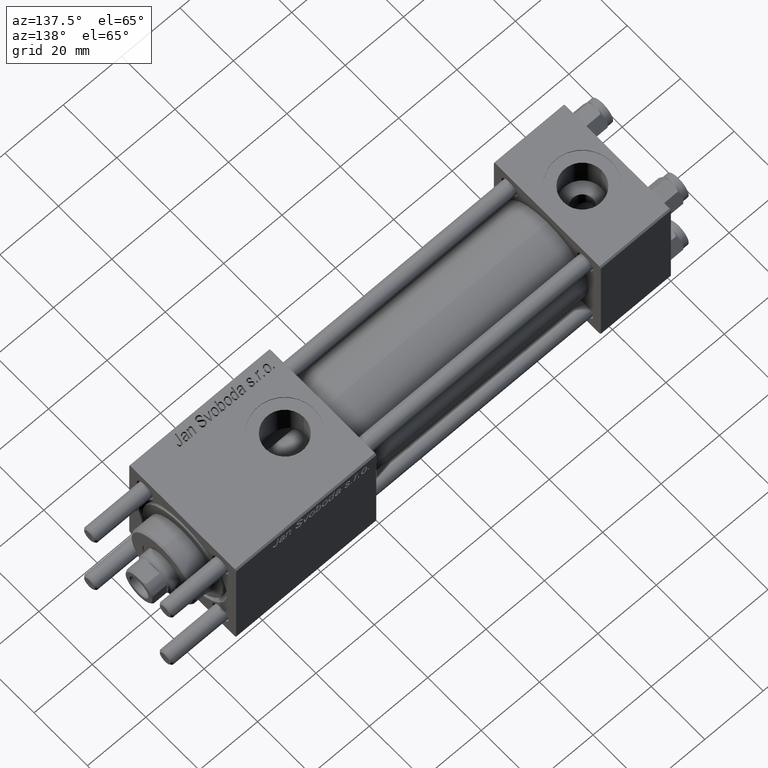
[diagram: clean part render]
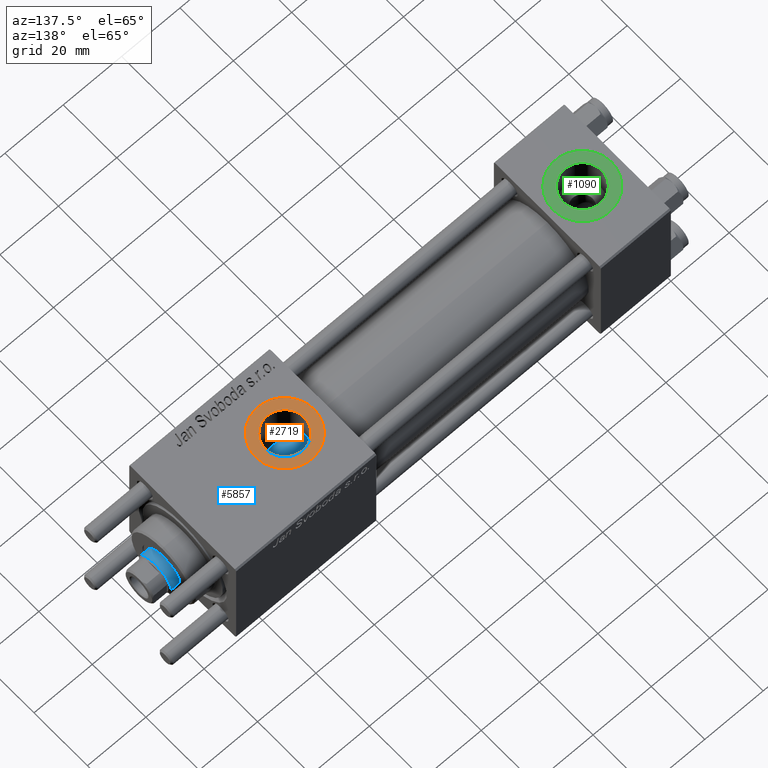
[diagram: same view with three faces highlighted in distinct colors, each labeled with its STEP entity id]
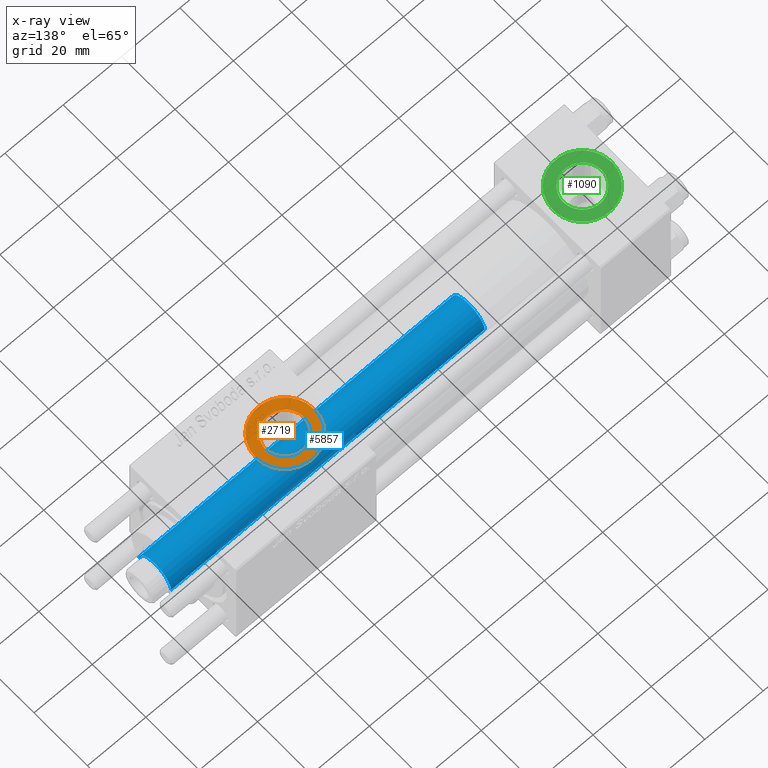
[diagram: x-ray of the same camera — body ghosted, the three highlighted faces saturated]
A machine part, auxiliary view with three faces highlighted in distinct colors.
The next image is the same camera in x-ray (body ghosted, the three faces saturated) — at least one of them is partly hidden behind the body in this view.
Their STEP definitions:

[orange] entity #2719 — the highlighted planar face has unit normal (0, 0, 1).
#166 = DIRECTION ( 'NONE',  ( 0.000000000000000000, 0.000000000000000000, 1.000000000000000000 ) ) ;
#1734 = EDGE_LOOP ( 'NONE', ( #2416, #25504 ) ) ;
#2230 = FACE_OUTER_BOUND ( 'NONE', #53367, .T. ) ;
#2416 = ORIENTED_EDGE ( 'NONE', *, *, #4156, .T. ) ;
#2719 = ADVANCED_FACE ( 'NONE', ( #24295, #2230 ), #20560, .T. ) ;
#3862 = VERTEX_POINT ( 'NONE', #44560 ) ;
#4156 = EDGE_CURVE ( 'NONE', #30870, #42241, #14863, .T. ) ;
#4901 = VERTEX_POINT ( 'NONE', #20712 ) ;
#6883 = EDGE_CURVE ( 'NONE', #3862, #4901, #14032, .T. ) ;
#14032 = CIRCLE ( 'NONE', #52415, 10.00000000000000888 ) ;
#14087 = CARTESIAN_POINT ( 'NONE',  ( 114.0000000000000000, -1.734723475976806897E-15, 19.80000000000000071 ) ) ;
#14598 = CARTESIAN_POINT ( 'NONE',  ( 120.5800000000000125, -9.289058821378482497E-16, 19.80000000000000071 ) ) ;
#14863 = CIRCLE ( 'NONE', #41393, 6.580000000000002736 ) ;
#16005 = AXIS2_PLACEMENT_3D ( 'NONE', #28723, #41914, #37342 ) ;
#17288 = EDGE_CURVE ( 'NONE', #42241, #30870, #43509, .T. ) ;
#17641 = CARTESIAN_POINT ( 'NONE',  ( 107.4200000000000017, -1.734723475976806897E-15, 19.80000000000000071 ) ) ;
#19356 = CARTESIAN_POINT ( 'NONE',  ( 114.0000000000000000, -1.734723475976806897E-15, 19.80000000000000071 ) ) ;
#20279 = DIRECTION ( 'NONE',  ( 0.000000000000000000, 0.000000000000000000, 1.000000000000000000 ) ) ;
#20560 = PLANE ( 'NONE',  #28438 ) ;
#20712 = CARTESIAN_POINT ( 'NONE',  ( 124.0000000000000142, -1.734723475976806897E-15, 19.80000000000000071 ) ) ;
#20847 = DIRECTION ( 'NONE',  ( 1.000000000000000000, 0.000000000000000000, -0.000000000000000000 ) ) ;
#24295 = FACE_BOUND ( 'NONE', #1734, .T. ) ;
#25504 = ORIENTED_EDGE ( 'NONE', *, *, #17288, .T. ) ;
#26393 = AXIS2_PLACEMENT_3D ( 'NONE', #19356, #54354, #50317 ) ;
#28438 = AXIS2_PLACEMENT_3D ( 'NONE', #38348, #20279, #20847 ) ;
#28723 = CARTESIAN_POINT ( 'NONE',  ( 114.0000000000000000, -1.734723475976806897E-15, 19.80000000000000071 ) ) ;
#30843 = CARTESIAN_POINT ( 'NONE',  ( 114.0000000000000000, -1.734723475976806897E-15, 19.80000000000000071 ) ) ;
#30870 = VERTEX_POINT ( 'NONE', #17641 ) ;
#31724 = EDGE_CURVE ( 'NONE', #4901, #3862, #41917, .T. ) ;
#32148 = DIRECTION ( 'NONE',  ( -0.000000000000000000, -0.000000000000000000, -1.000000000000000000 ) ) ;
#37342 = DIRECTION ( 'NONE',  ( 1.000000000000000000, 0.000000000000000000, 0.000000000000000000 ) ) ;
#38348 = CARTESIAN_POINT ( 'NONE',  ( 114.0000000000000000, -1.734723475976806897E-15, 19.80000000000000071 ) ) ;
#41393 = AXIS2_PLACEMENT_3D ( 'NONE', #14087, #32148, #45057 ) ;
#41914 = DIRECTION ( 'NONE',  ( -0.000000000000000000, -0.000000000000000000, -1.000000000000000000 ) ) ;
#41917 = CIRCLE ( 'NONE', #26393, 10.00000000000000888 ) ;
#42241 = VERTEX_POINT ( 'NONE', #14598 ) ;
#43509 = CIRCLE ( 'NONE', #16005, 6.580000000000002736 ) ;
#44560 = CARTESIAN_POINT ( 'NONE',  ( 104.0000000000000000, -5.100766768294525560E-16, 19.80000000000000071 ) ) ;
#45057 = DIRECTION ( 'NONE',  ( 1.000000000000000000, 0.000000000000000000, 0.000000000000000000 ) ) ;
#48058 = DIRECTION ( 'NONE',  ( 1.000000000000000000, 0.000000000000000000, 0.000000000000000000 ) ) ;
#50317 = DIRECTION ( 'NONE',  ( 1.000000000000000000, 0.000000000000000000, 0.000000000000000000 ) ) ;
#51727 = ORIENTED_EDGE ( 'NONE', *, *, #6883, .T. ) ;
#52415 = AXIS2_PLACEMENT_3D ( 'NONE', #30843, #166, #48058 ) ;
#53367 = EDGE_LOOP ( 'NONE', ( #55380, #51727 ) ) ;
#54354 = DIRECTION ( 'NONE',  ( 0.000000000000000000, 0.000000000000000000, 1.000000000000000000 ) ) ;
#55380 = ORIENTED_EDGE ( 'NONE', *, *, #31724, .T. ) ;

[blue] entity #5857 — the highlighted cylindrical surface (edge-blend (fillet) strip) has radius 6 mm, axis along (-1, 0, 0).
#1884 = ORIENTED_EDGE ( 'NONE', *, *, #2443, .T. ) ;
#2443 = EDGE_CURVE ( 'NONE', #3386, #36977, #28395, .T. ) ;
#2852 = DIRECTION ( 'NONE',  ( 1.000000000000000000, 0.000000000000000000, 0.000000000000000000 ) ) ;
#3386 = VERTEX_POINT ( 'NONE', #12910 ) ;
#3729 = DIRECTION ( 'NONE',  ( 0.000000000000000000, 0.000000000000000000, -1.000000000000000000 ) ) ;
#5857 = ADVANCED_FACE ( 'NONE', ( #52994 ), #44093, .T. ) ;
#8297 = CARTESIAN_POINT ( 'NONE',  ( 0.000000000000000000, 0.000000000000000000, 27.00000000000000000 ) ) ;
#10893 = EDGE_CURVE ( 'NONE', #28371, #32458, #36926, .T. ) ;
#12833 = CARTESIAN_POINT ( 'NONE',  ( 6.000000000000000888, 7.347880794884120722E-16, 27.00000000000000000 ) ) ;
#12910 = CARTESIAN_POINT ( 'NONE',  ( 6.000000000000000888, 7.347880794884120722E-16, 134.4999999999999716 ) ) ;
#16893 = CARTESIAN_POINT ( 'NONE',  ( 0.000000000000000000, 0.000000000000000000, 134.4999999999999716 ) ) ;
#17699 = CARTESIAN_POINT ( 'NONE',  ( 0.000000000000000000, 0.000000000000000000, 135.0000000000000000 ) ) ;
#20121 = CARTESIAN_POINT ( 'NONE',  ( 6.000000000000000888, 7.347880794884120722E-16, 135.0000000000000000 ) ) ;
#20751 = DIRECTION ( 'NONE',  ( -0.000000000000000000, -0.000000000000000000, -1.000000000000000000 ) ) ;
#22302 = DIRECTION ( 'NONE',  ( -0.000000000000000000, -0.000000000000000000, -1.000000000000000000 ) ) ;
#28162 = LINE ( 'NONE', #20121, #52060 ) ;
#28371 = VERTEX_POINT ( 'NONE', #49746 ) ;
#28395 = CIRCLE ( 'NONE', #36657, 6.000000000000000888 ) ;
#29614 = AXIS2_PLACEMENT_3D ( 'NONE', #8297, #42405, #2852 ) ;
#30661 = DIRECTION ( 'NONE',  ( 1.000000000000000000, 0.000000000000000000, 0.000000000000000000 ) ) ;
#31461 = DIRECTION ( 'NONE',  ( -1.000000000000000000, 0.000000000000000000, 0.000000000000000000 ) ) ;
#31986 = EDGE_CURVE ( 'NONE', #3386, #32458, #28162, .T. ) ;
#32458 = VERTEX_POINT ( 'NONE', #12833 ) ;
#36657 = AXIS2_PLACEMENT_3D ( 'NONE', #16893, #3729, #30661 ) ;
#36926 = CIRCLE ( 'NONE', #29614, 6.000000000000000888 ) ;
#36977 = VERTEX_POINT ( 'NONE', #41595 ) ;
#37461 = ORIENTED_EDGE ( 'NONE', *, *, #31986, .F. ) ;
#38547 = EDGE_CURVE ( 'NONE', #36977, #28371, #39403, .T. ) ;
#38657 = EDGE_LOOP ( 'NONE', ( #37461, #1884, #50847, #39468 ) ) ;
#39403 = LINE ( 'NONE', #43407, #43079 ) ;
#39468 = ORIENTED_EDGE ( 'NONE', *, *, #10893, .T. ) ;
#41083 = DIRECTION ( 'NONE',  ( -0.000000000000000000, -0.000000000000000000, -1.000000000000000000 ) ) ;
#41595 = CARTESIAN_POINT ( 'NONE',  ( -6.000000000000000888, 0.000000000000000000, 134.4999999999999716 ) ) ;
#42405 = DIRECTION ( 'NONE',  ( 0.000000000000000000, 0.000000000000000000, 1.000000000000000000 ) ) ;
#43079 = VECTOR ( 'NONE', #20751, 1000.000000000000000 ) ;
#43407 = CARTESIAN_POINT ( 'NONE',  ( -6.000000000000000888, 0.000000000000000000, 135.0000000000000000 ) ) ;
#44093 = CYLINDRICAL_SURFACE ( 'NONE', #54409, 6.000000000000000888 ) ;
#49746 = CARTESIAN_POINT ( 'NONE',  ( -6.000000000000000888, 0.000000000000000000, 27.00000000000000000 ) ) ;
#50847 = ORIENTED_EDGE ( 'NONE', *, *, #38547, .T. ) ;
#52060 = VECTOR ( 'NONE', #41083, 1000.000000000000000 ) ;
#52994 = FACE_OUTER_BOUND ( 'NONE', #38657, .T. ) ;
#54409 = AXIS2_PLACEMENT_3D ( 'NONE', #17699, #22302, #31461 ) ;

[green] entity #1090 — the highlighted planar face has unit normal (0, 0, 1).
#831 = CARTESIAN_POINT ( 'NONE',  ( 12.00000000000000000, 1.540743955509788682E-30, 19.79999999999999716 ) ) ;
#1090 = ADVANCED_FACE ( 'NONE', ( #39848, #43863 ), #30386, .T. ) ;
#2139 = CARTESIAN_POINT ( 'NONE',  ( 2.000000000000003553, 1.224646799147354440E-15, 19.79999999999999716 ) ) ;
#2651 = CIRCLE ( 'NONE', #9057, 6.579999999999999183 ) ;
#2765 = DIRECTION ( 'NONE',  ( 1.000000000000000000, 0.000000000000000000, 0.000000000000000000 ) ) ;
#5224 = CARTESIAN_POINT ( 'NONE',  ( 12.00000000000000000, 1.540743955509788682E-30, 19.79999999999999716 ) ) ;
#5384 = CARTESIAN_POINT ( 'NONE',  ( 12.00000000000000000, 1.540743955509788682E-30, 19.79999999999999716 ) ) ;
#5784 = DIRECTION ( 'NONE',  ( 0.000000000000000000, 0.000000000000000000, 1.000000000000000000 ) ) ;
#6007 = ORIENTED_EDGE ( 'NONE', *, *, #54000, .F. ) ;
#6396 = CIRCLE ( 'NONE', #51275, 6.579999999999999183 ) ;
#7054 = CARTESIAN_POINT ( 'NONE',  ( 12.00000000000000000, 1.540743955509788682E-30, 19.79999999999999716 ) ) ;
#7794 = VERTEX_POINT ( 'NONE', #37395 ) ;
#8298 = CIRCLE ( 'NONE', #28402, 9.999999999999998224 ) ;
#8604 = DIRECTION ( 'NONE',  ( 1.000000000000000000, 0.000000000000000000, -0.000000000000000000 ) ) ;
#9057 = AXIS2_PLACEMENT_3D ( 'NONE', #32133, #45318, #49909 ) ;
#9747 = VERTEX_POINT ( 'NONE', #47086 ) ;
#17991 = DIRECTION ( 'NONE',  ( 0.000000000000000000, 0.000000000000000000, 1.000000000000000000 ) ) ;
#18325 = DIRECTION ( 'NONE',  ( 0.000000000000000000, 0.000000000000000000, 1.000000000000000000 ) ) ;
#23803 = CIRCLE ( 'NONE', #29274, 9.999999999999998224 ) ;
#24546 = DIRECTION ( 'NONE',  ( 0.000000000000000000, 0.000000000000000000, 1.000000000000000000 ) ) ;
#28127 = DIRECTION ( 'NONE',  ( 1.000000000000000000, 0.000000000000000000, 0.000000000000000000 ) ) ;
#28402 = AXIS2_PLACEMENT_3D ( 'NONE', #5384, #17991, #52161 ) ;
#29274 = AXIS2_PLACEMENT_3D ( 'NONE', #5224, #5784, #28127 ) ;
#30386 = PLANE ( 'NONE',  #40287 ) ;
#31176 = CARTESIAN_POINT ( 'NONE',  ( 5.420000000000000817, 8.058175938389596335E-16, 19.79999999999999716 ) ) ;
#32133 = CARTESIAN_POINT ( 'NONE',  ( 12.00000000000000000, 1.540743955509788682E-30, 19.79999999999999716 ) ) ;
#36019 = ORIENTED_EDGE ( 'NONE', *, *, #36912, .T. ) ;
#36912 = EDGE_CURVE ( 'NONE', #7794, #38464, #23803, .T. ) ;
#37395 = CARTESIAN_POINT ( 'NONE',  ( 22.00000000000000000, 1.540743955509788682E-30, 19.79999999999999716 ) ) ;
#37450 = EDGE_CURVE ( 'NONE', #48436, #9747, #6396, .T. ) ;
#38464 = VERTEX_POINT ( 'NONE', #2139 ) ;
#39256 = ORIENTED_EDGE ( 'NONE', *, *, #37450, .F. ) ;
#39848 = FACE_BOUND ( 'NONE', #43355, .T. ) ;
#40287 = AXIS2_PLACEMENT_3D ( 'NONE', #831, #18325, #8604 ) ;
#42440 = EDGE_CURVE ( 'NONE', #38464, #7794, #8298, .T. ) ;
#43355 = EDGE_LOOP ( 'NONE', ( #6007, #39256 ) ) ;
#43863 = FACE_OUTER_BOUND ( 'NONE', #49948, .T. ) ;
#45318 = DIRECTION ( 'NONE',  ( 0.000000000000000000, 0.000000000000000000, 1.000000000000000000 ) ) ;
#47086 = CARTESIAN_POINT ( 'NONE',  ( 18.57999999999999829, 1.540743955509788682E-30, 19.79999999999999716 ) ) ;
#48436 = VERTEX_POINT ( 'NONE', #31176 ) ;
#49909 = DIRECTION ( 'NONE',  ( 1.000000000000000000, 0.000000000000000000, 0.000000000000000000 ) ) ;
#49948 = EDGE_LOOP ( 'NONE', ( #36019, #52443 ) ) ;
#51275 = AXIS2_PLACEMENT_3D ( 'NONE', #7054, #24546, #2765 ) ;
#52161 = DIRECTION ( 'NONE',  ( 1.000000000000000000, 0.000000000000000000, 0.000000000000000000 ) ) ;
#52443 = ORIENTED_EDGE ( 'NONE', *, *, #42440, .T. ) ;
#54000 = EDGE_CURVE ( 'NONE', #9747, #48436, #2651, .T. ) ;